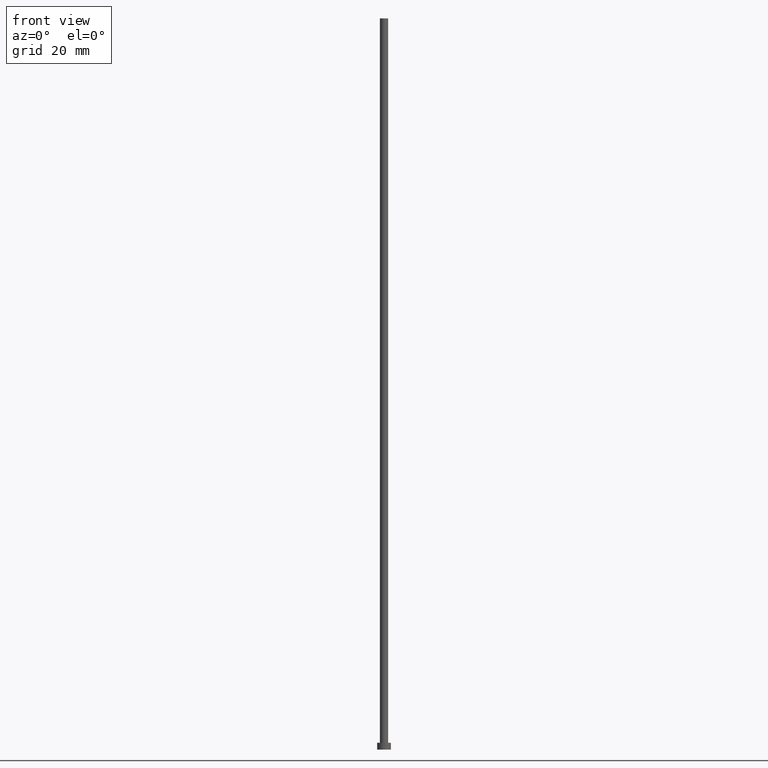
[diagram: clean part render]
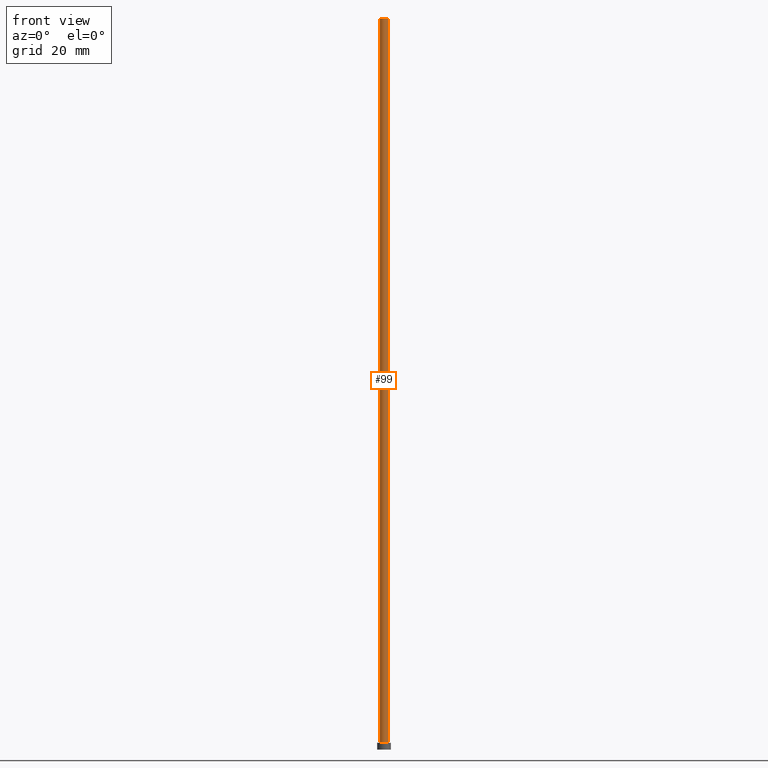
[diagram: same view with one face highlighted and labeled with its STEP entity id]
A machine part, front view. The second image highlights one B-rep face of the part: STEP entity #99.
In plain terms, the highlighted cylindrical surface (edge-blend (fillet) strip) has radius 0.9 mm, axis along (-0, -0, -1).
Its self-contained STEP definition (entity closure, byte-faithful):
#4 = EDGE_CURVE ( 'NONE', #6, #226, #209, .T. ) ;
#6 = VERTEX_POINT ( 'NONE', #85 ) ;
#21 = DIRECTION ( 'NONE',  ( -0.000000000000000000, -0.000000000000000000, -1.000000000000000000 ) ) ;
#22 = AXIS2_PLACEMENT_3D ( 'NONE', #127, #33, #170 ) ;
#24 = ORIENTED_EDGE ( 'NONE', *, *, #241, .F. ) ;
#31 = CARTESIAN_POINT ( 'NONE',  ( 0.9000000000000000222, 1.102182119232617788E-16, 1.500000000000000000 ) ) ;
#33 = DIRECTION ( 'NONE',  ( -0.000000000000000000, -0.000000000000000000, -1.000000000000000000 ) ) ;
#35 = CARTESIAN_POINT ( 'NONE',  ( -0.9000000000000000222, 0.000000000000000000, 160.0000000000000000 ) ) ;
#67 = FACE_OUTER_BOUND ( 'NONE', #205, .T. ) ;
#75 = DIRECTION ( 'NONE',  ( 0.000000000000000000, 0.000000000000000000, 1.000000000000000000 ) ) ;
#84 = CIRCLE ( 'NONE', #114, 0.9000000000000000222 ) ;
#85 = CARTESIAN_POINT ( 'NONE',  ( 0.9000000000000000222, 1.102182119232617788E-16, 160.0000000000000000 ) ) ;
#87 = VECTOR ( 'NONE', #221, 1000.000000000000000 ) ;
#88 = AXIS2_PLACEMENT_3D ( 'NONE', #253, #75, #231 ) ;
#96 = EDGE_CURVE ( 'NONE', #128, #226, #84, .T. ) ;
#99 = ADVANCED_FACE ( 'NONE', ( #67 ), #207, .T. ) ;
#109 = VECTOR ( 'NONE', #21, 1000.000000000000000 ) ;
#114 = AXIS2_PLACEMENT_3D ( 'NONE', #129, #204, #167 ) ;
#124 = CIRCLE ( 'NONE', #88, 0.9000000000000000222 ) ;
#127 = CARTESIAN_POINT ( 'NONE',  ( 0.000000000000000000, 0.000000000000000000, 160.0000000000000000 ) ) ;
#128 = VERTEX_POINT ( 'NONE', #145 ) ;
#129 = CARTESIAN_POINT ( 'NONE',  ( 0.000000000000000000, 0.000000000000000000, 1.500000000000000000 ) ) ;
#135 = CARTESIAN_POINT ( 'NONE',  ( -0.9000000000000000222, 0.000000000000000000, 160.0000000000000000 ) ) ;
#145 = CARTESIAN_POINT ( 'NONE',  ( -0.9000000000000000222, 0.000000000000000000, 1.500000000000000000 ) ) ;
#154 = CARTESIAN_POINT ( 'NONE',  ( 0.9000000000000000222, 1.102182119232617788E-16, 160.0000000000000000 ) ) ;
#167 = DIRECTION ( 'NONE',  ( 1.000000000000000000, 0.000000000000000000, 0.000000000000000000 ) ) ;
#170 = DIRECTION ( 'NONE',  ( -1.000000000000000000, 0.000000000000000000, 0.000000000000000000 ) ) ;
#188 = ORIENTED_EDGE ( 'NONE', *, *, #96, .T. ) ;
#203 = ORIENTED_EDGE ( 'NONE', *, *, #4, .F. ) ;
#204 = DIRECTION ( 'NONE',  ( 0.000000000000000000, 0.000000000000000000, 1.000000000000000000 ) ) ;
#205 = EDGE_LOOP ( 'NONE', ( #203, #24, #243, #188 ) ) ;
#207 = CYLINDRICAL_SURFACE ( 'NONE', #22, 0.9000000000000000222 ) ;
#209 = LINE ( 'NONE', #154, #87 ) ;
#211 = LINE ( 'NONE', #35, #109 ) ;
#221 = DIRECTION ( 'NONE',  ( -0.000000000000000000, -0.000000000000000000, -1.000000000000000000 ) ) ;
#226 = VERTEX_POINT ( 'NONE', #31 ) ;
#231 = DIRECTION ( 'NONE',  ( 1.000000000000000000, 0.000000000000000000, 0.000000000000000000 ) ) ;
#241 = EDGE_CURVE ( 'NONE', #248, #6, #124, .T. ) ;
#243 = ORIENTED_EDGE ( 'NONE', *, *, #251, .T. ) ;
#248 = VERTEX_POINT ( 'NONE', #135 ) ;
#251 = EDGE_CURVE ( 'NONE', #248, #128, #211, .T. ) ;
#253 = CARTESIAN_POINT ( 'NONE',  ( 0.000000000000000000, 0.000000000000000000, 160.0000000000000000 ) ) ;